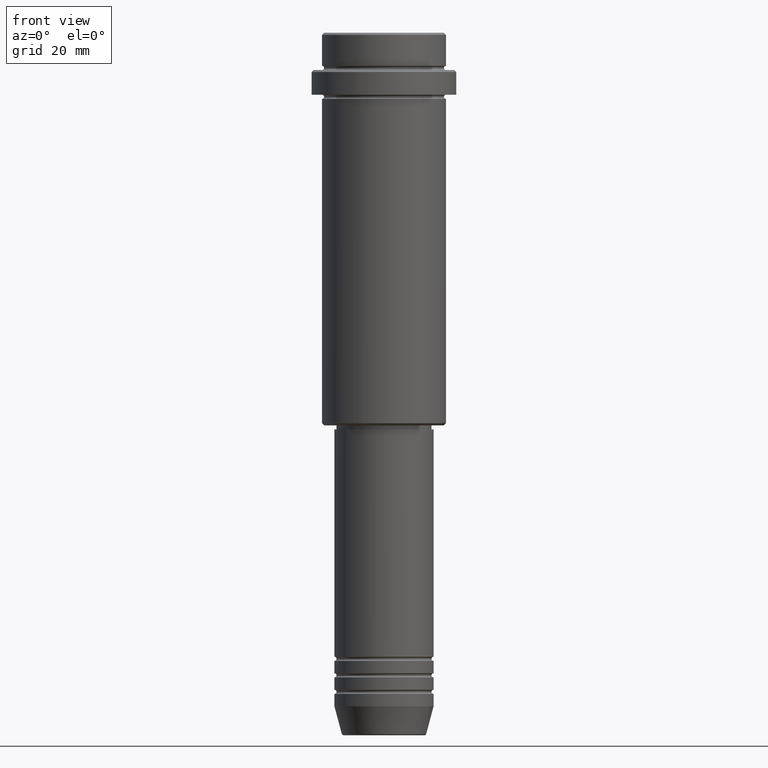
[diagram: clean part render]
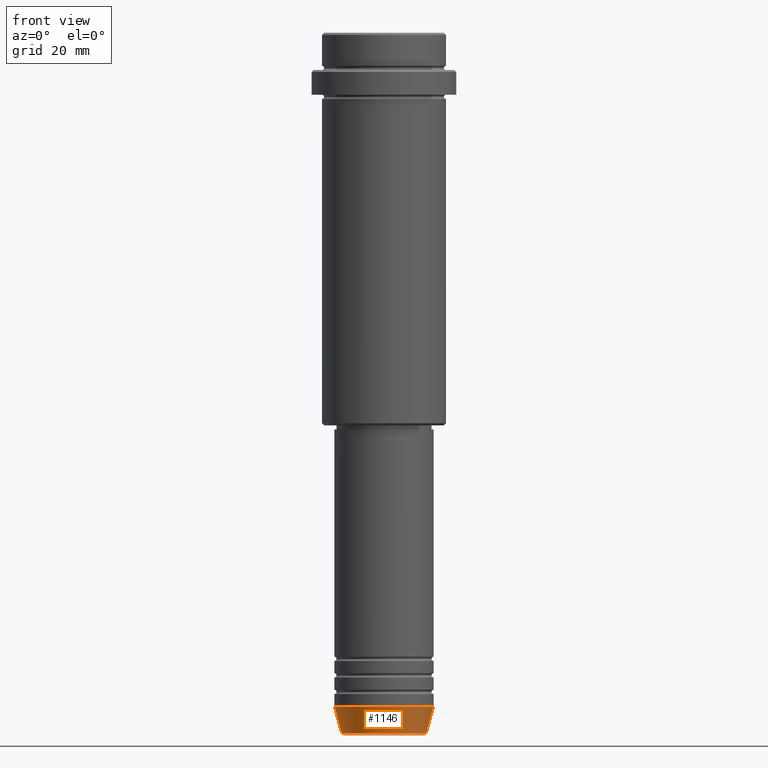
[diagram: same view with one face highlighted and labeled with its STEP entity id]
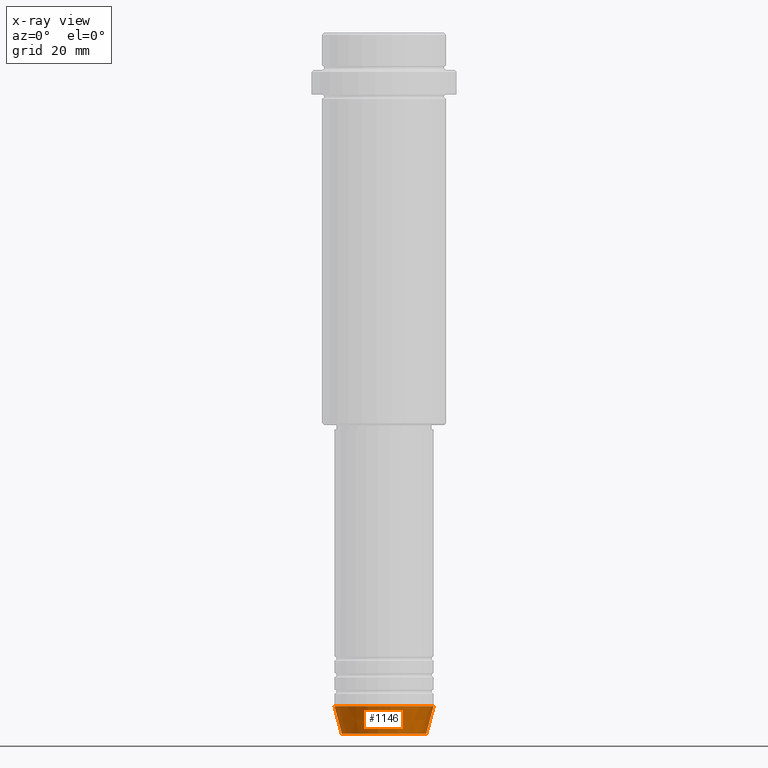
[diagram: x-ray of the same camera — body ghosted, the highlighted face saturated]
A machine part, front view. The second image highlights one B-rep face of the part: STEP entity #1146.
The next image is the same camera in x-ray: the body ghosted, the highlighted face saturated — about 0% of this face is hidden behind the body in this view.
In plain terms, the highlighted conical surface has half-angle 15 deg.
Its self-contained STEP definition (entity closure, byte-faithful):
#31 = DIRECTION ( 'NONE',  ( -0.2588190451025213501, 3.169619151431772337E-17, 0.9659258262890680902 ) ) ;
#83 = VERTEX_POINT ( 'NONE', #184 ) ;
#111 = AXIS2_PLACEMENT_3D ( 'NONE', #991, #345, #1197 ) ;
#142 = CARTESIAN_POINT ( 'NONE',  ( -12.00000000000000000, 1.469576158976823947E-15, -163.0000000000000000 ) ) ;
#184 = CARTESIAN_POINT ( 'NONE',  ( -12.00000000000000000, 1.469576158976823947E-15, -163.0000000000000000 ) ) ;
#218 = ORIENTED_EDGE ( 'NONE', *, *, #862, .T. ) ;
#224 = VERTEX_POINT ( 'NONE', #812 ) ;
#242 = DIRECTION ( 'NONE',  ( 0.2588190451025213501, 0.000000000000000000, 0.9659258262890680902 ) ) ;
#268 = DIRECTION ( 'NONE',  ( 1.000000000000000000, 0.000000000000000000, 0.000000000000000000 ) ) ;
#345 = DIRECTION ( 'NONE',  ( -0.000000000000000000, -0.000000000000000000, 1.000000000000000000 ) ) ;
#358 = EDGE_CURVE ( 'NONE', #83, #946, #1191, .T. ) ;
#403 = EDGE_CURVE ( 'NONE', #224, #946, #996, .T. ) ;
#425 = ORIENTED_EDGE ( 'NONE', *, *, #403, .T. ) ;
#443 = DIRECTION ( 'NONE',  ( 1.000000000000000000, 0.000000000000000000, 0.000000000000000000 ) ) ;
#527 = CONICAL_SURFACE ( 'NONE', #1248, 12.00000000000000000, 0.2617993877991500740 ) ;
#538 = FACE_OUTER_BOUND ( 'NONE', #1173, .T. ) ;
#539 = AXIS2_PLACEMENT_3D ( 'NONE', #1001, #578, #268 ) ;
#578 = DIRECTION ( 'NONE',  ( -0.000000000000000000, -0.000000000000000000, 1.000000000000000000 ) ) ;
#668 = ORIENTED_EDGE ( 'NONE', *, *, #358, .F. ) ;
#738 = CIRCLE ( 'NONE', #111, 10.22365507213719660 ) ;
#812 = CARTESIAN_POINT ( 'NONE',  ( 10.22365507213719660, 0.000000000000000000, -169.6294095225512706 ) ) ;
#862 = EDGE_CURVE ( 'NONE', #863, #224, #738, .T. ) ;
#863 = VERTEX_POINT ( 'NONE', #1362 ) ;
#879 = EDGE_CURVE ( 'NONE', #863, #83, #1254, .T. ) ;
#946 = VERTEX_POINT ( 'NONE', #1041 ) ;
#975 = CARTESIAN_POINT ( 'NONE',  ( 0.000000000000000000, 0.000000000000000000, -163.0000000000000000 ) ) ;
#991 = CARTESIAN_POINT ( 'NONE',  ( 0.000000000000000000, 0.000000000000000000, -169.6294095225512706 ) ) ;
#996 = LINE ( 'NONE', #1080, #1412 ) ;
#1001 = CARTESIAN_POINT ( 'NONE',  ( 0.000000000000000000, 0.000000000000000000, -163.0000000000000000 ) ) ;
#1041 = CARTESIAN_POINT ( 'NONE',  ( 12.00000000000000000, 0.000000000000000000, -163.0000000000000000 ) ) ;
#1079 = VECTOR ( 'NONE', #31, 1000.000000000000000 ) ;
#1080 = CARTESIAN_POINT ( 'NONE',  ( 12.00000000000000000, 0.000000000000000000, -163.0000000000000000 ) ) ;
#1091 = ORIENTED_EDGE ( 'NONE', *, *, #879, .F. ) ;
#1146 = ADVANCED_FACE ( 'NONE', ( #538 ), #527, .T. ) ;
#1173 = EDGE_LOOP ( 'NONE', ( #1091, #218, #425, #668 ) ) ;
#1191 = CIRCLE ( 'NONE', #539, 12.00000000000000000 ) ;
#1197 = DIRECTION ( 'NONE',  ( 1.000000000000000000, 0.000000000000000000, 0.000000000000000000 ) ) ;
#1248 = AXIS2_PLACEMENT_3D ( 'NONE', #975, #1415, #443 ) ;
#1254 = LINE ( 'NONE', #142, #1079 ) ;
#1362 = CARTESIAN_POINT ( 'NONE',  ( -10.22365507213719837, 1.360806402472383336E-15, -169.6294095225512706 ) ) ;
#1412 = VECTOR ( 'NONE', #242, 1000.000000000000000 ) ;
#1415 = DIRECTION ( 'NONE',  ( -0.000000000000000000, -0.000000000000000000, 1.000000000000000000 ) ) ;